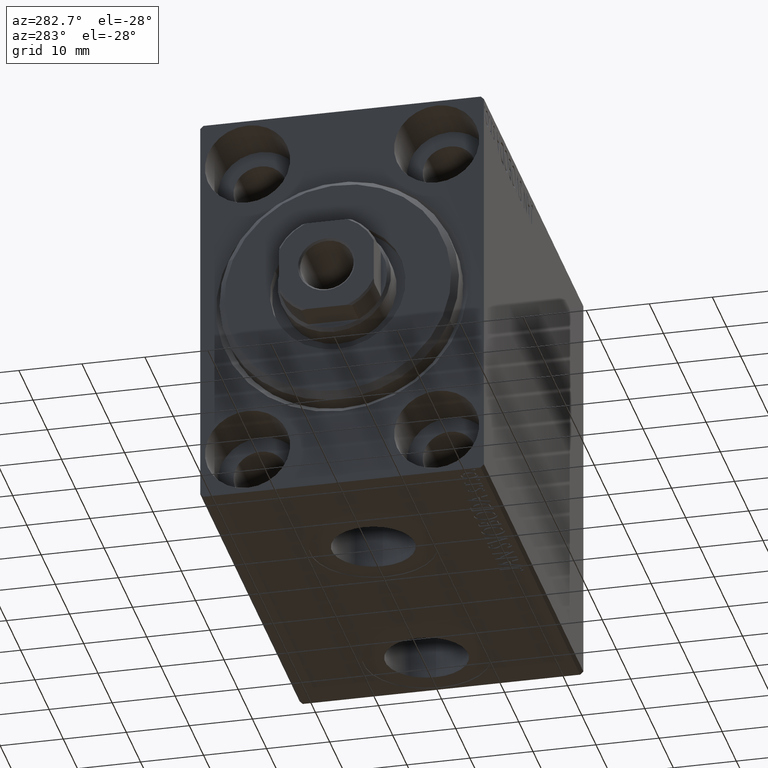
[diagram: clean part render]
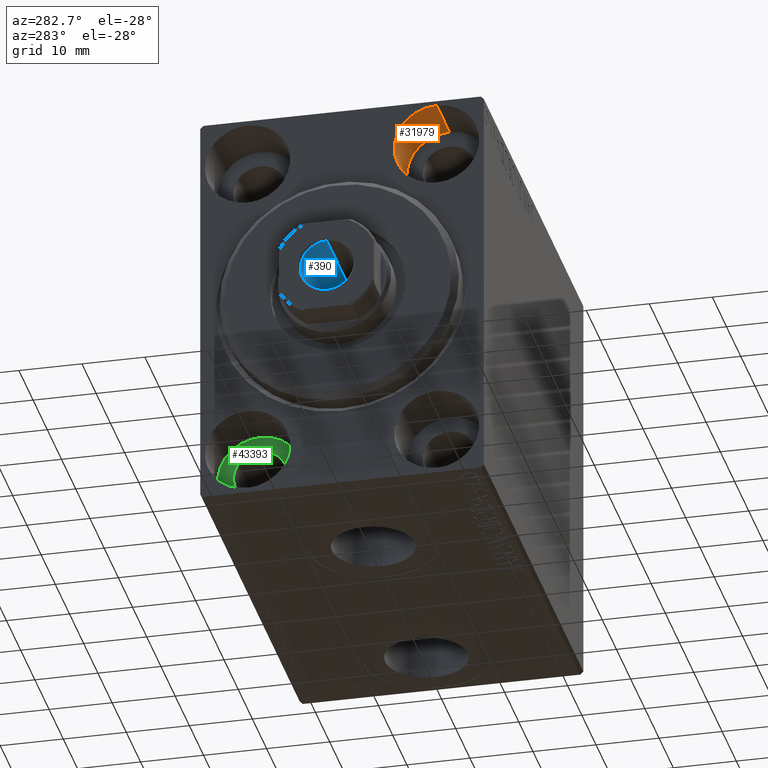
[diagram: same view with three faces highlighted in distinct colors, each labeled with its STEP entity id]
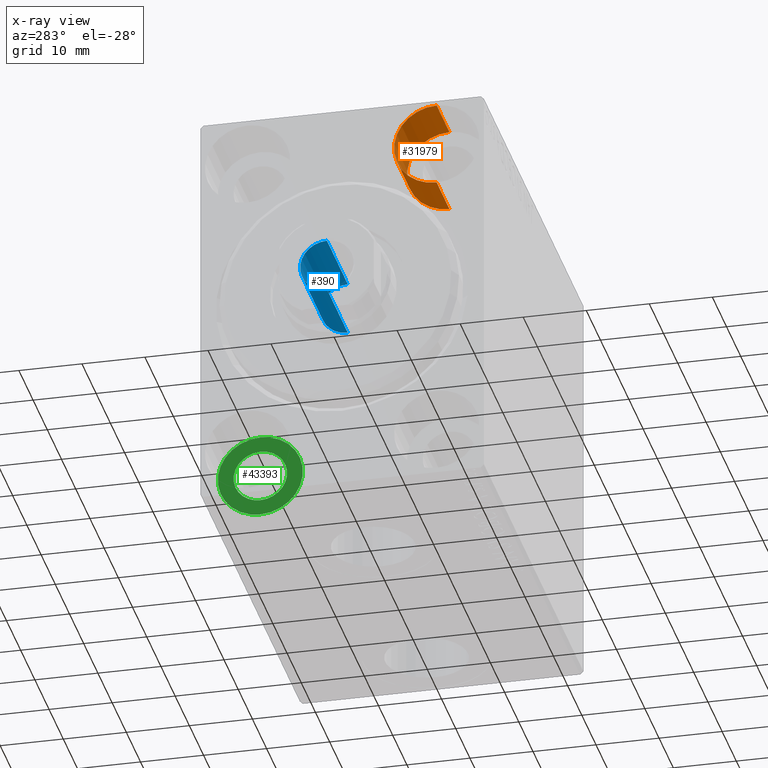
[diagram: x-ray of the same camera — body ghosted, the three highlighted faces saturated]
A machine part, auxiliary view with three faces highlighted in distinct colors.
The next image is the same camera in x-ray (body ghosted, the three faces saturated) — at least one of them is partly hidden behind the body in this view.
Their STEP definitions:

[orange] entity #31979 — the highlighted cylindrical surface (partial cylindrical patch) has radius 6.75 mm, axis along (-1, -0, -0).
#1319 = DIRECTION ( 'NONE',  ( -1.000000000000000000, -0.000000000000000000, -0.000000000000000000 ) ) ;
#4563 = CYLINDRICAL_SURFACE ( 'NONE', #36787, 6.749999999999999112 ) ;
#5719 = DIRECTION ( 'NONE',  ( -1.000000000000000000, 0.000000000000000000, 0.000000000000000000 ) ) ;
#6258 = EDGE_CURVE ( 'NONE', #26164, #12300, #12102, .T. ) ;
#6667 = VECTOR ( 'NONE', #22962, 1000.000000000000000 ) ;
#6713 = EDGE_CURVE ( 'NONE', #43228, #35369, #9252, .T. ) ;
#8287 = EDGE_LOOP ( 'NONE', ( #13661, #39277, #23259, #27817 ) ) ;
#8539 = AXIS2_PLACEMENT_3D ( 'NONE', #38562, #24768, #34345 ) ;
#9252 = CIRCLE ( 'NONE', #8539, 6.749999999999999112 ) ;
#9388 = CARTESIAN_POINT ( 'NONE',  ( 9.000000000000000000, -14.99999999999999645, 18.25000000000000355 ) ) ;
#9505 = DIRECTION ( 'NONE',  ( 0.000000000000000000, 0.000000000000000000, 1.000000000000000000 ) ) ;
#10825 = VECTOR ( 'NONE', #1319, 1000.000000000000000 ) ;
#11895 = FACE_OUTER_BOUND ( 'NONE', #8287, .T. ) ;
#12102 = CIRCLE ( 'NONE', #43372, 6.749999999999999112 ) ;
#12300 = VERTEX_POINT ( 'NONE', #42830 ) ;
#12419 = CARTESIAN_POINT ( 'NONE',  ( 9.000000000000000000, -14.99999999999999645, 31.75000000000000000 ) ) ;
#12694 = EDGE_CURVE ( 'NONE', #26164, #43228, #32003, .T. ) ;
#13661 = ORIENTED_EDGE ( 'NONE', *, *, #21672, .F. ) ;
#16644 = CARTESIAN_POINT ( 'NONE',  ( 9.000000000000000000, -14.99999999999999645, 31.75000000000000000 ) ) ;
#19708 = CARTESIAN_POINT ( 'NONE',  ( 0.000000000000000000, -14.99999999999999645, 31.75000000000000000 ) ) ;
#19744 = CARTESIAN_POINT ( 'NONE',  ( 9.000000000000000000, -14.99999999999999645, 25.00000000000000000 ) ) ;
#21672 = EDGE_CURVE ( 'NONE', #12300, #35369, #36540, .T. ) ;
#22962 = DIRECTION ( 'NONE',  ( -1.000000000000000000, -0.000000000000000000, -0.000000000000000000 ) ) ;
#23259 = ORIENTED_EDGE ( 'NONE', *, *, #12694, .T. ) ;
#24768 = DIRECTION ( 'NONE',  ( -1.000000000000000000, 0.000000000000000000, 0.000000000000000000 ) ) ;
#25463 = CARTESIAN_POINT ( 'NONE',  ( 9.000000000000000000, -14.99999999999999645, 25.00000000000000000 ) ) ;
#26164 = VERTEX_POINT ( 'NONE', #16644 ) ;
#27817 = ORIENTED_EDGE ( 'NONE', *, *, #6713, .T. ) ;
#31979 = ADVANCED_FACE ( 'NONE', ( #11895 ), #4563, .F. ) ;
#32003 = LINE ( 'NONE', #12419, #10825 ) ;
#32142 = DIRECTION ( 'NONE',  ( -1.000000000000000000, -0.000000000000000000, -0.000000000000000000 ) ) ;
#33179 = CARTESIAN_POINT ( 'NONE',  ( 0.000000000000000000, -14.99999999999999645, 18.25000000000000355 ) ) ;
#34345 = DIRECTION ( 'NONE',  ( 0.000000000000000000, 0.000000000000000000, 1.000000000000000000 ) ) ;
#35369 = VERTEX_POINT ( 'NONE', #33179 ) ;
#36540 = LINE ( 'NONE', #9388, #6667 ) ;
#36787 = AXIS2_PLACEMENT_3D ( 'NONE', #25463, #32142, #38157 ) ;
#38157 = DIRECTION ( 'NONE',  ( 0.000000000000000000, 0.000000000000000000, 1.000000000000000000 ) ) ;
#38562 = CARTESIAN_POINT ( 'NONE',  ( 0.000000000000000000, -14.99999999999999645, 25.00000000000000000 ) ) ;
#39277 = ORIENTED_EDGE ( 'NONE', *, *, #6258, .F. ) ;
#42830 = CARTESIAN_POINT ( 'NONE',  ( 9.000000000000000000, -14.99999999999999645, 18.25000000000000355 ) ) ;
#43228 = VERTEX_POINT ( 'NONE', #19708 ) ;
#43372 = AXIS2_PLACEMENT_3D ( 'NONE', #19744, #5719, #9505 ) ;

[blue] entity #390 — the highlighted cylindrical surface (edge-blend (fillet) strip) has radius 4.25 mm, axis along (-1, 0, 0).
#390 = ADVANCED_FACE ( 'NONE', ( #36947 ), #20252, .F. ) ;
#1642 = ORIENTED_EDGE ( 'NONE', *, *, #6462, .T. ) ;
#3897 = VECTOR ( 'NONE', #40871, 1000.000000000000000 ) ;
#3943 = CARTESIAN_POINT ( 'NONE',  ( -4.249999999999997335, 5.204748896376248727E-16, 74.70000000000001705 ) ) ;
#6462 = EDGE_CURVE ( 'NONE', #19370, #39654, #24594, .T. ) ;
#6833 = CARTESIAN_POINT ( 'NONE',  ( -4.249999999999997335, 5.204748896376248727E-16, 75.00000000000001421 ) ) ;
#6877 = DIRECTION ( 'NONE',  ( -0.000000000000000000, -0.000000000000000000, 1.000000000000000000 ) ) ;
#8180 = VERTEX_POINT ( 'NONE', #3943 ) ;
#9566 = CIRCLE ( 'NONE', #30867, 4.249999999999996447 ) ;
#12039 = AXIS2_PLACEMENT_3D ( 'NONE', #12898, #29373, #40055 ) ;
#12898 = CARTESIAN_POINT ( 'NONE',  ( 0.000000000000000000, 0.000000000000000000, 74.70000000000001705 ) ) ;
#14149 = LINE ( 'NONE', #6833, #3897 ) ;
#16258 = CARTESIAN_POINT ( 'NONE',  ( 0.000000000000000000, 0.000000000000000000, 75.00000000000001421 ) ) ;
#17288 = CARTESIAN_POINT ( 'NONE',  ( 4.249999999999996447, 0.000000000000000000, 60.00000000000001421 ) ) ;
#19370 = VERTEX_POINT ( 'NONE', #17288 ) ;
#20252 = CYLINDRICAL_SURFACE ( 'NONE', #24237, 4.249999999999997335 ) ;
#21485 = CARTESIAN_POINT ( 'NONE',  ( 4.249999999999997335, 0.000000000000000000, 75.00000000000001421 ) ) ;
#22783 = VECTOR ( 'NONE', #34611, 1000.000000000000000 ) ;
#22981 = EDGE_CURVE ( 'NONE', #19370, #38697, #9566, .T. ) ;
#24237 = AXIS2_PLACEMENT_3D ( 'NONE', #16258, #40711, #36509 ) ;
#24321 = EDGE_CURVE ( 'NONE', #38697, #8180, #14149, .T. ) ;
#24594 = LINE ( 'NONE', #21485, #22783 ) ;
#26185 = ORIENTED_EDGE ( 'NONE', *, *, #24321, .F. ) ;
#29373 = DIRECTION ( 'NONE',  ( 0.000000000000000000, 0.000000000000000000, 1.000000000000000000 ) ) ;
#30681 = DIRECTION ( 'NONE',  ( 1.000000000000000000, 0.000000000000000000, 0.000000000000000000 ) ) ;
#30867 = AXIS2_PLACEMENT_3D ( 'NONE', #33812, #6877, #30681 ) ;
#33812 = CARTESIAN_POINT ( 'NONE',  ( 0.000000000000000000, 0.000000000000000000, 60.00000000000001421 ) ) ;
#34611 = DIRECTION ( 'NONE',  ( -0.000000000000000000, -0.000000000000000000, 1.000000000000000000 ) ) ;
#34756 = CARTESIAN_POINT ( 'NONE',  ( 4.249999999999997335, 0.000000000000000000, 74.70000000000001705 ) ) ;
#35364 = CIRCLE ( 'NONE', #12039, 4.249999999999997335 ) ;
#36509 = DIRECTION ( 'NONE',  ( 1.000000000000000000, 0.000000000000000000, 0.000000000000000000 ) ) ;
#36570 = CARTESIAN_POINT ( 'NONE',  ( -4.249999999999996447, 5.204748896376247741E-16, 60.00000000000001421 ) ) ;
#36947 = FACE_OUTER_BOUND ( 'NONE', #39710, .T. ) ;
#38145 = EDGE_CURVE ( 'NONE', #39654, #8180, #35364, .T. ) ;
#38697 = VERTEX_POINT ( 'NONE', #36570 ) ;
#39654 = VERTEX_POINT ( 'NONE', #34756 ) ;
#39674 = ORIENTED_EDGE ( 'NONE', *, *, #22981, .F. ) ;
#39710 = EDGE_LOOP ( 'NONE', ( #26185, #39674, #1642, #41398 ) ) ;
#40055 = DIRECTION ( 'NONE',  ( 1.000000000000000000, 0.000000000000000000, 0.000000000000000000 ) ) ;
#40711 = DIRECTION ( 'NONE',  ( -0.000000000000000000, -0.000000000000000000, 1.000000000000000000 ) ) ;
#40871 = DIRECTION ( 'NONE',  ( -0.000000000000000000, -0.000000000000000000, 1.000000000000000000 ) ) ;
#41398 = ORIENTED_EDGE ( 'NONE', *, *, #38145, .T. ) ;

[green] entity #43393 — the highlighted planar face has unit normal (-1, 0, 0).
#3234 = DIRECTION ( 'NONE',  ( -1.000000000000000000, 0.000000000000000000, 0.000000000000000000 ) ) ;
#3593 = VERTEX_POINT ( 'NONE', #27126 ) ;
#3652 = CARTESIAN_POINT ( 'NONE',  ( 9.000000000000000000, 14.99999999999999645, -25.00000000000000000 ) ) ;
#3667 = CARTESIAN_POINT ( 'NONE',  ( 9.000000000000001776, 14.99999999999999645, -29.25000000000000000 ) ) ;
#3870 = PLANE ( 'NONE',  #42128 ) ;
#6175 = DIRECTION ( 'NONE',  ( -1.000000000000000000, 0.000000000000000000, 0.000000000000000000 ) ) ;
#7293 = CIRCLE ( 'NONE', #15112, 6.749999999999999112 ) ;
#8340 = VERTEX_POINT ( 'NONE', #31534 ) ;
#8709 = AXIS2_PLACEMENT_3D ( 'NONE', #23691, #3234, #37271 ) ;
#8839 = DIRECTION ( 'NONE',  ( 0.000000000000000000, 0.000000000000000000, 1.000000000000000000 ) ) ;
#10375 = VERTEX_POINT ( 'NONE', #34024 ) ;
#11032 = ORIENTED_EDGE ( 'NONE', *, *, #43443, .F. ) ;
#12273 = CIRCLE ( 'NONE', #8709, 4.249999999999996447 ) ;
#12354 = CARTESIAN_POINT ( 'NONE',  ( 9.000000000000001776, 14.99999999999999645, -25.00000000000000000 ) ) ;
#12598 = DIRECTION ( 'NONE',  ( -1.000000000000000000, 0.000000000000000000, 0.000000000000000000 ) ) ;
#12818 = DIRECTION ( 'NONE',  ( 0.000000000000000000, 0.000000000000000000, 1.000000000000000000 ) ) ;
#13453 = FACE_OUTER_BOUND ( 'NONE', #15203, .T. ) ;
#13882 = EDGE_CURVE ( 'NONE', #8340, #10375, #7293, .T. ) ;
#15112 = AXIS2_PLACEMENT_3D ( 'NONE', #22830, #12598, #12818 ) ;
#15203 = EDGE_LOOP ( 'NONE', ( #38451, #16798 ) ) ;
#16131 = DIRECTION ( 'NONE',  ( 0.000000000000000000, 0.000000000000000000, 1.000000000000000000 ) ) ;
#16309 = AXIS2_PLACEMENT_3D ( 'NONE', #26419, #6175, #8839 ) ;
#16798 = ORIENTED_EDGE ( 'NONE', *, *, #13882, .T. ) ;
#16802 = AXIS2_PLACEMENT_3D ( 'NONE', #12354, #29487, #16131 ) ;
#17006 = FACE_BOUND ( 'NONE', #31005, .T. ) ;
#20572 = DIRECTION ( 'NONE',  ( 0.000000000000000000, 0.000000000000000000, 1.000000000000000000 ) ) ;
#22830 = CARTESIAN_POINT ( 'NONE',  ( 9.000000000000000000, 14.99999999999999645, -25.00000000000000000 ) ) ;
#23691 = CARTESIAN_POINT ( 'NONE',  ( 9.000000000000001776, 14.99999999999999645, -25.00000000000000000 ) ) ;
#26419 = CARTESIAN_POINT ( 'NONE',  ( 9.000000000000000000, 14.99999999999999645, -25.00000000000000000 ) ) ;
#26483 = VERTEX_POINT ( 'NONE', #3667 ) ;
#27126 = CARTESIAN_POINT ( 'NONE',  ( 9.000000000000001776, 14.99999999999999645, -20.75000000000000355 ) ) ;
#29487 = DIRECTION ( 'NONE',  ( -1.000000000000000000, 0.000000000000000000, 0.000000000000000000 ) ) ;
#31005 = EDGE_LOOP ( 'NONE', ( #34562, #11032 ) ) ;
#31534 = CARTESIAN_POINT ( 'NONE',  ( 9.000000000000000000, 14.99999999999999645, -31.75000000000000000 ) ) ;
#33156 = EDGE_CURVE ( 'NONE', #3593, #26483, #43804, .T. ) ;
#34024 = CARTESIAN_POINT ( 'NONE',  ( 9.000000000000000000, 14.99999999999999645, -18.25000000000000355 ) ) ;
#34562 = ORIENTED_EDGE ( 'NONE', *, *, #33156, .F. ) ;
#36924 = CIRCLE ( 'NONE', #16309, 6.749999999999999112 ) ;
#37047 = DIRECTION ( 'NONE',  ( -1.000000000000000000, 0.000000000000000000, 0.000000000000000000 ) ) ;
#37271 = DIRECTION ( 'NONE',  ( 0.000000000000000000, 0.000000000000000000, 1.000000000000000000 ) ) ;
#38451 = ORIENTED_EDGE ( 'NONE', *, *, #38458, .T. ) ;
#38458 = EDGE_CURVE ( 'NONE', #10375, #8340, #36924, .T. ) ;
#42128 = AXIS2_PLACEMENT_3D ( 'NONE', #3652, #37047, #20572 ) ;
#43393 = ADVANCED_FACE ( 'NONE', ( #17006, #13453 ), #3870, .T. ) ;
#43443 = EDGE_CURVE ( 'NONE', #26483, #3593, #12273, .T. ) ;
#43804 = CIRCLE ( 'NONE', #16802, 4.249999999999996447 ) ;